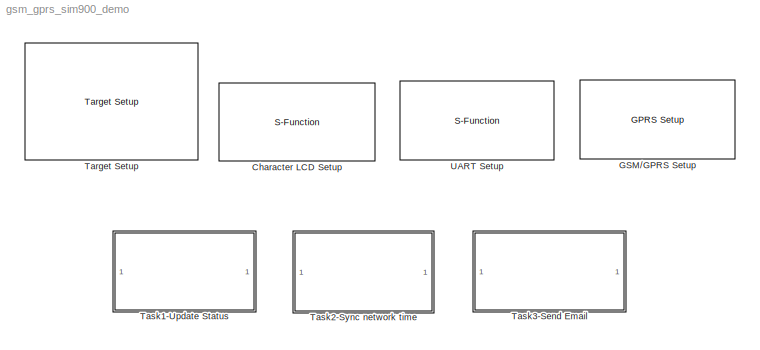
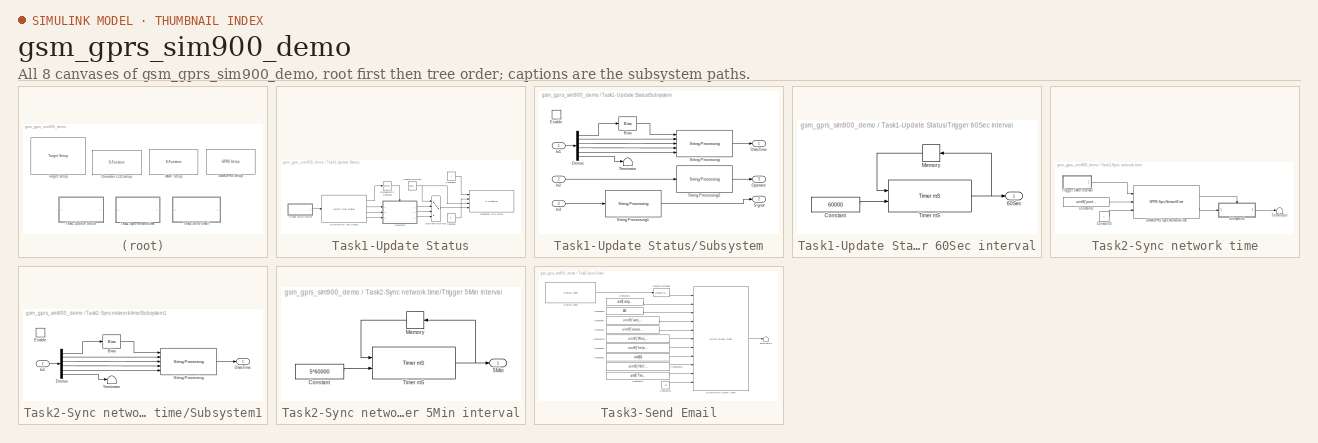
[diagram: thumbnail index - all 8 canvases of the model, root first then tree order]
MODEL gsm_gprs_sim900_demo
KIND model
CONFIG PreLoadFcn = waijung.modelPreload; % Required for working with Waijung Blockset. Do not remove.
BLOCK [S-Function] Character LCD Setup
  EnableBusSupport = off
  FunctionName = amg_clcd
  MaskCallbackString = amg_clcd_callback('configuration');||||||||||||||||amg_clcd_callback('usestringbuffer');||amg_clcd_callback('varname');|||amg_clcd_callback('confstr');|amg_clcd_callback('sampletime');|amg_clcd_callback('sampletimestr');|amg_clcd_callback('blockid');
  MaskDisplay = text(0.5, 0.5, 'Module: CLCD1 (Setup)\\nInterface: 4-bits\\nCntrl: E7/E8/E9\\nD[7:4]: E12/E13/E14/E15\\nTs (sec): 0.01','ver','middle','hor','center');
  MaskEnableString = on,on,on,on,off,on,on,on,on,on,on,on,on,on,on,on,on,on,off,off,off,on,on,on,on
  MaskHelp = web(fullfile(waijungdocroot,'amg_clcd_setup.htm'), '-browser')
  MaskIconFrame = on
  MaskIconOpaque = on
  MaskIconRotate = none
  MaskIconUnits = normalized
  MaskInitialization = amg_clcd_callback('init');
  MaskPortRotate = default
  MaskPromptString = Configuration:|Module:|LCD model:|Interface:|Number of lines (2 or 4):|Number of columns (16 or 20):|GPIO Output type:|GPIO control port:|GPIO control pin, RS:|GPIO control pin, RW:|GPIO control pin, EN:|GPIO data D[7:4] port|GPIO data pin, D4:|GPIO data pin, D5:|GPIO data pin, D6:|GPIO data pin, D7:|Use string buffer|String buffer|Variable name|Input type array|Output type array|Configuration str...<+66ch>
  MaskSelfModifiable = on
  MaskStyleString = popup(Setup|Transaction),popup(1|2|3|4),popup(amg CLCD Std),popup(4-bits),edit,edit,popup(Push-pull|Open-drain),popup(A|B|C|D|E|F|G|H|I),popup(0|1|2|3|4|5|6|7|8|9|10|11|12|13|14|15),popup(0|1|2|3|4|5|6|7|8|9|10|11|12|13|14|15),popup(0|1|2|3|4|5|6|7|8|9|10|11|12|13|14|15),popup(A|B|C|D|E|F|G|H|I),popup(0|1|2|3|4|5|6|7|8|9|10|11|12|13|14|15),popup(0|1|2|3|4|5|6|7|8|9|10|11|12|13|14|15),popup(0|1|2|3...<+135ch>
  MaskTabNameString = ,,,,,,,,,,,,,,,,,,,,,,,,
  MaskToolTipString = on,on,on,on,on,on,on,on,on,on,on,on,on,on,on,on,on,on,on,on,on,on,on,on,on
  MaskTunableValueString = off,off,off,off,off,off,off,off,off,off,off,off,off,off,off,off,off,off,off,off,off,off,off,off,off
  MaskType = amg_clcd
  MaskValueString = Setup|1|amg CLCD Std|4-bits|4|16|Push-pull|E|7|8|9|E|12|13|14|15|off|<empty>||[0]|[0]|[\"4\",\"4\",\"16\",\"PP\",\"E\",\"7\",\"9\",\"8\",\"\",\"E\",\"\",\"\",\"\",\"\",\"12\",\"13\",\"14\",\"15\",\"0\",\"\",\"0\",\"0\",\"0\",\"0\",\"1\",\"0\",\"0\",\"0\",\"0\",\"stm32f4\"]|-1|0.01|CharacterLCDSetup
  MaskVarAliasString = ,,,,,,,,,,,,,,,,,,,,,,,,
  MaskVariables = configuration=&1;module=&2;model=&3;interface=&4;linecount=@5;columncount=@6;gpiotype=&7;controlport=&8;control_rs=&9;control_rw=&10;control_en=&11;dataport=&12;data0=&13;data1=&14;data2=&15;data3=&16;usestringbuffer=@17;stringbuffer=&18;varname=&19;inputtypearray=@20;outputtypearray=@21;confstr=&22;sampletime=@23;sampletimestr=&24;blockid=&25;
  MaskVisibilityString = off,on,off,on,off,on,on,on,on,on,on,on,on,on,on,on,off,off,off,off,off,off,off,off,off
  Parameters = module,configuration,inputtypearray,outputtypearray,confstr,sampletime,sampletimestr,blockid
  Ports = []
BLOCK [Reference] GSM//GPRS Setup  REF=waijung_atcmd_gsmgprs_lib/GSM//GPRS Setup
  Ports = []
  SourceBlock = waijung_atcmd_gsmgprs_lib/GSM//GPRS Setup
  SourceType = waijung_atcmd_gsmgprs
  apn = 'Internet'
  blockid = GSMGPRSSetup
  compat = 0
  conf = Setup
  connectiontype = GPRS
  inputportlabel = {}
  inputporttype = []
  inputportwidth = []
  optionstring = [\"1\",\"2\",\"GPRS\",\"Internet\",\"D\",\"1\",\"D\",\"0\",\"0\",\"\",\"''\",\"''\"]
  outputportlabel = {}
  outputporttype = []
  outputportwidth = []
  password = ''
  portpinstr = 0
  pwrkey_pin = 1
  pwrkey_port = D
  reset_pin = 0
  reset_port = D
  sampletime = inf
  stringparam1 = ''
  stringparam2 = ''
  stringparam3 = ''
  stringparam4 = ''
  uartmodule = 2
  user = ''
BLOCK [Reference] Target Setup  REF=stm32f4_device_config_lib/Target Setup
  Ports = []
  Priority = 100
  SourceBlock = stm32f4_device_config_lib/Target Setup
  SourceType = stm32f4_target_setup
  assemblercontrolstr = $(patsubst %, -I%, .) -mcpu=cortex-m4 -mthumb -mthumb-interwork -mfloat-abi=hard -mfpu=fpv4-sp-d16 -ffast-math -Wall -Wextra -Ofast -Wa,-amhls=$(<:.s=.lst) -D__STACK_SIZE=$(STACK_SIZE) -D__HEAP_SIZE=$(HEAP_SIZE)
  blockid = TargetSetup
  clockconfig = HSEOSC-8MHz
  compiler = GNU ARM
  compilercontrolstr = $(patsubst %, -I%, .) -mcpu=cortex-m4 -mthumb -mthumb-interwork -mfloat-abi=hard -mfpu=fpv4-sp-d16 -ffast-math -Wall -Wextra -Ofast
  editctrlstr = on
  enableautocompiledownload = on
  execprofile = None
  flashlength = 1024k
  flashorigin = 0x8000000
  fullchiperase = off
  hclk = 168000000
  heapsize = 0x2000
  hseval = 8000000
  lastprofileruart = 3
  linkercontrolstr = -T$(LD_SCRIPT) -g -Wl,-Map=$(MAP),--cref,--no-warn-mismatch -mcpu=cortex-m4 -mthumb -mthumb-interwork -mfloat-abi=hard -mfpu=fpv4-sp-d16 -specs=nosys.specs
  manualsetsampletime = on
  mcu = STM32F417IG (LQFP176)
  mcustr = STM32F417IG
  previous_compiler = GNU ARM
  profilerbaud = 500000
  profilerinitstr = 0.01,168000000,1680000,500000,0
  profilertxpin = D8
  profileruart = 3
  programmerinterface = ST-Link
  ramlength = 128k
  ramorigin = 0x20000000
  runafterdownload = on
  sampletime = 0.01
  showmemoryconfiguration = on
  stacksize = 0x2000
  system_stm32f4xx_c_path = <path>
  systickreloadvalue = 1680000
  useextram = off
BLOCK [SubSystem] Task1-Update Status
  FunctionWithSeparateData = off
  MaskHideContents = off
  MinAlgLoopOccurrences = off
  Opaque = off
  Ports = []
  PropExecContextOutsideSubsystem = off
  RTWSystemCode = Auto
  RequestExecContextInheritance = off
BLOCK [S-Function] Task1-Update Status/Character LCD Write
  EnableBusSupport = off
  FunctionName = amg_clcd
  MaskCallbackString = amg_clcd_callback('configuration');||||||||||||||||amg_clcd_callback('usestringbuffer');||amg_clcd_callback('varname');|||amg_clcd_callback('confstr');|amg_clcd_callback('sampletime');|amg_clcd_callback('sampletimestr');|amg_clcd_callback('blockid');
  MaskDescription = Note for cmd:\n1 - Clear specified LCD line display before write data to LCD.\nOtherwise (e.g. 0) - Write data without clearing LCD Line.\n\nPosition:\nx = 0, First Character (from left to right)\ny = 0, Top Line
  MaskDisplay = text(0.5, 0.5, 'Module: CLCD1 (Write)\\nTs (sec): 0.01','ver','middle','hor','center');port_label('input', 1,'cmd');port_label('input', 2,'xpos');port_label('input', 3,'ypos');port_label('input', 4,'str');
  MaskEnableString = on,on,on,on,off,on,on,on,on,on,on,on,on,on,on,on,on,on,off,off,off,on,on,on,on
  MaskHelp = web(fullfile(waijungdocroot,'amg_clcd_write.htm'), '-browser')
  MaskIconFrame = on
  MaskIconOpaque = on
  MaskIconRotate = none
  MaskIconUnits = normalized
  MaskInitialization = amg_clcd_callback('init');
  MaskPortRotate = default
  MaskPromptString = Configuration:|Module:|LCD model:|Interface:|Number of lines:|Number of columns:|GPIO Output type:|GPIO control port:|GPIO control pin, RS:|GPIO control pin, RW:|GPIO control pin, EN:|GPIO data D[7:4] port|GPIO data pin, D4:|GPIO data pin, D5:|GPIO data pin, D6:|GPIO data pin, D7:|Use string buffer|String buffer|Variable name|Input type array|Output type array|Configuration string|Sample time (sec...<+46ch>
  MaskSelfModifiable = on
  MaskStyleString = popup(Setup|Transaction),popup(1|2|3|4),popup(amg CLCD Std),popup(4-bits),edit,edit,popup(Push-pull|Open-drain),popup(A|B|C|D|E|F|G|H|I),popup(0|1|2|3|4|5|6|7|8|9|10|11|12|13|14|15),popup(0|1|2|3|4|5|6|7|8|9|10|11|12|13|14|15),popup(0|1|2|3|4|5|6|7|8|9|10|11|12|13|14|15),popup(A|B|C|D|E|F|G|H|I),popup(0|1|2|3|4|5|6|7|8|9|10|11|12|13|14|15),popup(0|1|2|3|4|5|6|7|8|9|10|11|12|13|14|15),popup(0|1|2|3...<+135ch>
  MaskTabNameString = ,,,,,,,,,,,,,,,,,,,,,,,,
  MaskToolTipString = on,on,on,on,on,on,on,on,on,on,on,on,on,on,on,on,on,on,on,on,on,on,on,on,on
  MaskTunableValueString = off,off,off,off,off,off,off,off,off,off,off,off,off,off,off,off,off,off,off,off,off,off,off,off,off
  MaskType = amg_clcd
  MaskValueString = Transaction|1|amg CLCD Std|4-bits|4|20|Push-pull|E|15|13|11|A|7|5|3|1|off|<empty>||[4 -1 -1 -1 -1]|[0]|[\"4\",\"4\",\"20\",\"PP\",\"E\",\"15\",\"11\",\"13\",\"\",\"A\",\"\",\"\",\"\",\"\",\"7\",\"5\",\"3\",\"1\",\"0\",\"\",\"1\",\"0\",\"0\",\"0\",\"1\",\"0\",\"0\",\"0\",\"0\",\"stm32f4\"]|-1|0.01|Task1UpdateStatusCharacterLCDWrite
  MaskVarAliasString = ,,,,,,,,,,,,,,,,,,,,,,,,
  MaskVariables = configuration=&1;module=&2;model=&3;interface=&4;linecount=@5;columncount=@6;gpiotype=&7;controlport=&8;control_rs=&9;control_rw=&10;control_en=&11;dataport=&12;data0=&13;data1=&14;data2=&15;data3=&16;usestringbuffer=@17;stringbuffer=&18;varname=&19;inputtypearray=@20;outputtypearray=@21;confstr=&22;sampletime=@23;sampletimestr=&24;blockid=&25;
  MaskVisibilityString = off,on,off,off,off,off,off,off,off,off,off,off,off,off,off,off,on,off,off,off,off,off,on,off,off
  Parameters = module,configuration,inputtypearray,outputtypearray,confstr,sampletime,sampletimestr,blockid
  Ports = [4]
BLOCK [Reference] Task1-Update Status/Compare\nTo Constant  REF=simulink/Logic and Bit\nOperations/Compare\nTo Constant
  FunctionWithSeparateData = off
  LogicOutDataTypeMode = uint8
  Ports = [1, 1]
  RTWMemSecDataConstants = Inherit from model
  RTWMemSecDataInternal = Inherit from model
  RTWMemSecDataParameters = Inherit from model
  RTWMemSecFuncExecute = Inherit from model
  RTWMemSecFuncInitTerm = Inherit from model
  ShowPortLabels = FromPortIcon
  SourceBlock = simulink/Logic and Bit\nOperations/Compare\nTo Constant
  SourceType = Compare To Constant
  SystemSampleTime = -1
  ZeroCross = off
  const = 3
  relop = ==
BLOCK [Constant] Task1-Update Status/Constant
  OutDataType = fixdt(1, 16)
  OutDataTypeMode = uint8
  OutDataTypeStr = uint8
  OutScaling = 2^0
  Value = 0
BLOCK [Constant] Task1-Update Status/Constant1
  OutDataType = fixdt(1, 16)
  OutDataTypeMode = uint8
  OutDataTypeStr = uint8
  OutScaling = 2^0
BLOCK [Reference] Task1-Update Status/Counter\nLimited  REF=simulink/Sources/Counter\nLimited
  FunctionWithSeparateData = off
  Ports = [0, 1]
  RTWMemSecDataConstants = Inherit from model
  RTWMemSecDataInternal = Inherit from model
  RTWMemSecDataParameters = Inherit from model
  RTWMemSecFuncExecute = Inherit from model
  RTWMemSecFuncInitTerm = Inherit from model
  ShowPortLabels = FromPortIcon
  SourceBlock = simulink/Sources/Counter\nLimited
  SourceType = Counter Limited
  SystemSampleTime = -1
  tsamp = -1
  uplimit = 2
BLOCK [Reference] Task1-Update Status/GSM//GPRS Get Status  REF=waijung_atcmd_gsmgprs_lib/GSM//GPRS Get Status
  Ports = [1, 4]
  SourceBlock = waijung_atcmd_gsmgprs_lib/GSM//GPRS Get Status
  SourceType = waijung_atcmd_gsmgprs
  blockid = Task1UpdateStatusGSMGPRSGetStatus
  compat = 0
  conf = GetStatus
  inputportlabel = {'Trig'}
  inputporttype = [3]
  inputportwidth = [1]
  optionstring = [\"1\",\"2\",\"GPRS\",\"Internet\",\"D\",\"1\",\"D\",\"0\",\"0\",\"\",\"\",\"\"]
  outputportlabel = {'Status','Date/Time','Operator','Signal Strength'}
  outputporttype = [3 7 3 7]
  outputportwidth = [1 6 32 1]
  portpinstr = 0
  sampletime = inf
  stringparam1 = ''
  stringparam2 = ''
BLOCK [MultiPortSwitch] Task1-Update Status/Multiport\nSwitch
  InputSameDT = off
  OutDataType = fixdt(1, 16)
  OutScaling = 2^0
  Ports = [4, 1]
  SaturateOnIntegerOverflow = off
  zeroidx = on
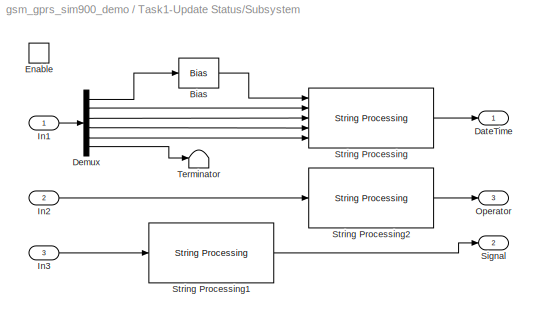
BLOCK [SubSystem] Task1-Update Status/Subsystem
  FunctionWithSeparateData = off
  MaskHideContents = off
  MinAlgLoopOccurrences = off
  Opaque = off
  Ports = [3, 3, 1]
  PropExecContextOutsideSubsystem = off
  RTWSystemCode = Auto
  RequestExecContextInheritance = off
BLOCK [Bias] Task1-Update Status/Subsystem/Bias
  Bias = 2000
  SaturateOnIntegerOverflow = off
BLOCK [Outport] Task1-Update Status/Subsystem/DateTime
  IconDisplay = Port number
  InitialOutput = uint8('Search network..                ')
BLOCK [Demux] Task1-Update Status/Subsystem/Demux
  DisplayOption = bar
  Outputs = 6
  Ports = [1, 6]
BLOCK [EnablePort] Task1-Update Status/Subsystem/Enable
  Ports = []
BLOCK [Inport] Task1-Update Status/Subsystem/In1
  IconDisplay = Port number
BLOCK [Inport] Task1-Update Status/Subsystem/In2
  IconDisplay = Port number
  Port = 2
BLOCK [Inport] Task1-Update Status/Subsystem/In3
  IconDisplay = Port number
  Port = 3
BLOCK [Outport] Task1-Update Status/Subsystem/Operator
  IconDisplay = Port number
  InitialOutput = uint8('                                ')
  Port = 3
BLOCK [Outport] Task1-Update Status/Subsystem/Signal
  IconDisplay = Port number
  InitialOutput = uint8('                                ')
  Port = 2
BLOCK [Reference] Task1-Update Status/Subsystem/String Processing  REF=waijung_string_manipulate/String Processing
  Ports = [5, 1]
  SourceBlock = waijung_string_manipulate/String Processing
  SourceType = waijung_string_processing_callback
  begindelimiter = ''
  blockid = Task1UpdateStatusSubsystemStringProcessing
  buffersize = 32
  compat = 0
  conf = processing
  datatypestring = [\"uint32_t\",\"uint32_t\",\"uint32_t\",\"uint32_t\",\"uint32_t\"]
  enablestatus = off
  enddelimiter = ''
  inputportlabel = {'%u','%u','%u','%u','%u'}
  inputporttype = [-1 -1 -1 -1 -1]
  inputportwidth = [1 1 1 1 1]
  optionstring = []
  outputportlabel = {'Output'}
  outputporttype = [3]
  outputportwidth = [32]
  portpinstr = 0
  sampletime = inf
  stringformat = '%u/%u/%u %u:%u'
  stringfunction = sprintf
BLOCK [Reference] Task1-Update Status/Subsystem/String Processing1  REF=waijung_string_manipulate/String Processing
  Ports = [1, 1]
  SourceBlock = waijung_string_manipulate/String Processing
  SourceType = waijung_string_processing_callback
  begindelimiter = ''
  blockid = Task1UpdateStatusSubsystemStringProcessing1
  buffersize = 32
  compat = 0
  conf = processing
  datatypestring = [\"int32_t\"]
  enablestatus = off
  enddelimiter = ''
  inputportlabel = {'%d'}
  inputporttype = [-1]
  inputportwidth = [1]
  optionstring = []
  outputportlabel = {'Output'}
  outputporttype = [3]
  outputportwidth = [32]
  portpinstr = 0
  sampletime = inf
  stringformat = 'Signal: %d'
  stringfunction = sprintf
BLOCK [Reference] Task1-Update Status/Subsystem/String Processing2  REF=waijung_string_manipulate/String Processing
  Ports = [1, 1]
  SourceBlock = waijung_string_manipulate/String Processing
  SourceType = waijung_string_processing_callback
  begindelimiter = ''
  blockid = Task1UpdateStatusSubsystemStringProcessing2
  buffersize = 32
  compat = 0
  conf = processing
  datatypestring = [\"char *\"]
  enablestatus = off
  enddelimiter = ''
  inputportlabel = {'%s'}
  inputporttype = [3]
  inputportwidth = [-1]
  optionstring = []
  outputportlabel = {'Output'}
  outputporttype = [3]
  outputportwidth = [32]
  portpinstr = 0
  sampletime = inf
  stringformat = 'OP: %s'
  stringfunction = sprintf
BLOCK [Terminator] Task1-Update Status/Subsystem/Terminator
BLOCK [SubSystem] Task1-Update Status/Trigger 60Sec interval
  FunctionWithSeparateData = off
  MaskHideContents = off
  MinAlgLoopOccurrences = off
  Opaque = off
  Ports = [0, 1]
  PropExecContextOutsideSubsystem = off
  RTWSystemCode = Auto
  RequestExecContextInheritance = off
BLOCK [Outport] Task1-Update Status/Trigger 60Sec interval/60Sec
  IconDisplay = Port number
BLOCK [Constant] Task1-Update Status/Trigger 60Sec interval/Constant
  OutDataType = fixdt(1, 16)
  OutDataTypeMode = uint32
  OutDataTypeStr = uint32
  OutScaling = 2^0
  Value = 60000
BLOCK [Memory] Task1-Update Status/Trigger 60Sec interval/Memory
  InheritSampleTime = on
  LinearizeAsDelay = on
  LinearizeMemory = on
BLOCK [Reference] Task1-Update Status/Trigger 60Sec interval/Timer mS  REF=waijung_systimer_lib/Timer mS
  Ports = [2, 1]
  SourceBlock = waijung_systimer_lib/Timer mS
  SourceType = waijung_systimer
  blockid = Task1UpdateStatusTrigger60SecintervalTimermS
  compat = 0
  conf = timerms
  inputportlabel = {'Reset','mS'}
  inputporttype = [3 7]
  inputportwidth = []
  mode = Non-blocking
  optionstring = [\"Non-blocking\"]
  outputportlabel = {'Timeout'}
  outputporttype = [3]
  outputportwidth = []
  portpinstr = 0
  sampletime = inf
BLOCK [SubSystem] Task2-Sync network time
  FunctionWithSeparateData = off
  MaskHideContents = off
  MinAlgLoopOccurrences = off
  Opaque = off
  Ports = []
  PropExecContextOutsideSubsystem = off
  RTWSystemCode = Auto
  RequestExecContextInheritance = off
BLOCK [Constant] Task2-Sync network time/Constant2
  OutDataType = fixdt(1, 16)
  OutScaling = 2^0
  Value = uint8('pool.ntp.org')
BLOCK [Constant] Task2-Sync network time/Constant3
  OutDataType = fixdt(1, 16)
  OutDataTypeMode = int32
  OutDataTypeStr = int32
  OutScaling = 2^0
  Value = 7
BLOCK [Reference] Task2-Sync network time/GSM//GPRS Sync NetworkTime  REF=waijung_atcmd_gsmgprs_lib/GSM//GPRS Sync NetworkTime
  Ports = [3, 2]
  SourceBlock = waijung_atcmd_gsmgprs_lib/GSM//GPRS Sync NetworkTime
  SourceType = waijung_atcmd_gsmgprs
  blockid = Task2SyncnetworktimeGSMGPRSSyncNetworkTime
  compat = 0
  conf = SyncNetworkTime
  inputportlabel = {'Trig','NTP Server','Time zone'}
  inputporttype = [3 3 6]
  inputportwidth = [1 -1 1]
  optionstring = [\"1\",\"2\",\"GPRS\",\"Internet\",\"D\",\"1\",\"D\",\"0\",\"0\",\"\",\"\",\"\"]
  outputportlabel = {'Status','Date/Time'}
  outputporttype = [3 7]
  outputportwidth = [1 6]
  portpinstr = 0
  sampletime = inf
  stringparam1 = ''
  stringparam2 = ''
BLOCK [SubSystem] Task2-Sync network time/Subsystem1
  FunctionWithSeparateData = off
  MaskHideContents = off
  MinAlgLoopOccurrences = off
  Opaque = off
  Ports = [1, 1, 1]
  PropExecContextOutsideSubsystem = off
  RTWSystemCode = Auto
  RequestExecContextInheritance = off
BLOCK [Bias] Task2-Sync network time/Subsystem1/Bias
  Bias = 2000
  SaturateOnIntegerOverflow = off
BLOCK [Outport] Task2-Sync network time/Subsystem1/DateTime
  IconDisplay = Port number
BLOCK [Demux] Task2-Sync network time/Subsystem1/Demux
  DisplayOption = bar
  Outputs = 6
  Ports = [1, 6]
BLOCK [EnablePort] Task2-Sync network time/Subsystem1/Enable
  Ports = []
BLOCK [Inport] Task2-Sync network time/Subsystem1/In1
  IconDisplay = Port number
BLOCK [Reference] Task2-Sync network time/Subsystem1/String Processing  REF=waijung_string_manipulate/String Processing
  Ports = [5, 1]
  SourceBlock = waijung_string_manipulate/String Processing
  SourceType = waijung_string_processing_callback
  begindelimiter = ''
  blockid = Task2SyncnetworktimeSubsystem1StringProcessing
  buffersize = 32
  compat = 0
  conf = processing
  datatypestring = [\"uint32_t\",\"uint32_t\",\"uint32_t\",\"uint32_t\",\"uint32_t\"]
  enablestatus = off
  enddelimiter = ''
  inputportlabel = {'%u','%u','%u','%u','%u'}
  inputporttype = [-1 -1 -1 -1 -1]
  inputportwidth = [1 1 1 1 1]
  optionstring = []
  outputportlabel = {'Output'}
  outputporttype = [3]
  outputportwidth = [32]
  portpinstr = 0
  sampletime = inf
  stringformat = '%u/%u/%u %u:%u'
  stringfunction = sprintf
BLOCK [Terminator] Task2-Sync network time/Subsystem1/Terminator
BLOCK [Terminator] Task2-Sync network time/Terminator
BLOCK [SubSystem] Task2-Sync network time/Trigger 5Min interval
  FunctionWithSeparateData = off
  MaskHideContents = off
  MinAlgLoopOccurrences = off
  Opaque = off
  Ports = [0, 1]
  PropExecContextOutsideSubsystem = off
  RTWSystemCode = Auto
  RequestExecContextInheritance = off
BLOCK [Outport] Task2-Sync network time/Trigger 5Min interval/5Min
  IconDisplay = Port number
BLOCK [Constant] Task2-Sync network time/Trigger 5Min interval/Constant
  OutDataType = fixdt(1, 16)
  OutDataTypeMode = uint32
  OutDataTypeStr = uint32
  OutScaling = 2^0
  Value = 5*60000
BLOCK [Memory] Task2-Sync network time/Trigger 5Min interval/Memory
  InheritSampleTime = on
  LinearizeAsDelay = on
  LinearizeMemory = on
BLOCK [Reference] Task2-Sync network time/Trigger 5Min interval/Timer mS  REF=waijung_systimer_lib/Timer mS
  Ports = [2, 1]
  SourceBlock = waijung_systimer_lib/Timer mS
  SourceType = waijung_systimer
  blockid = Task2SyncnetworktimeTrigger5MinintervalTimermS
  compat = 0
  conf = timerms
  inputportlabel = {'Reset','mS'}
  inputporttype = [3 7]
  inputportwidth = []
  mode = Non-blocking
  optionstring = [\"Non-blocking\"]
  outputportlabel = {'Timeout'}
  outputporttype = [3]
  outputportwidth = []
  portpinstr = 0
  sampletime = inf
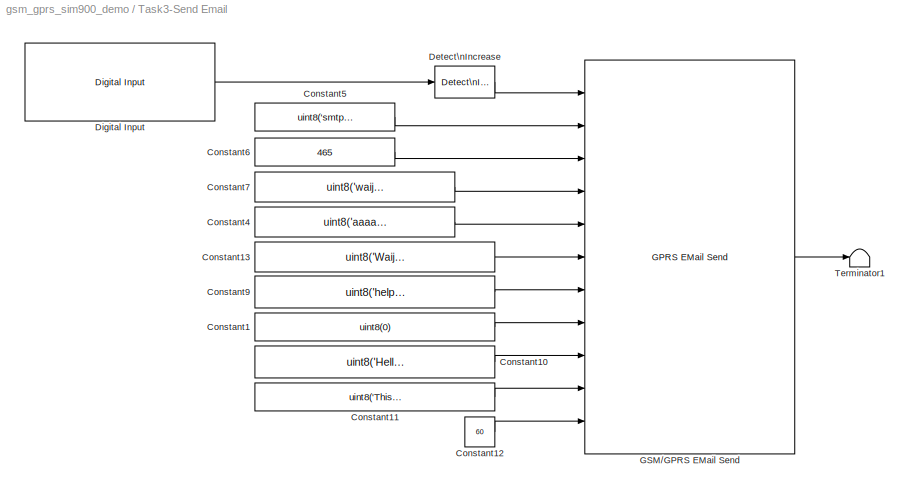
BLOCK [SubSystem] Task3-Send Email
  FunctionWithSeparateData = off
  MaskHideContents = off
  MinAlgLoopOccurrences = off
  Opaque = off
  Ports = []
  PropExecContextOutsideSubsystem = off
  RTWSystemCode = Auto
  RequestExecContextInheritance = off
BLOCK [Constant] Task3-Send Email/Constant1
  OutDataType = fixdt(1, 16)
  OutScaling = 2^0
  Value = uint8(0)
BLOCK [Constant] Task3-Send Email/Constant10
  OutDataType = fixdt(1, 16)
  OutScaling = 2^0
  Value = uint8('Hello...')
BLOCK [Constant] Task3-Send Email/Constant11
  OutDataType = fixdt(1, 16)
  OutScaling = 2^0
  Value = uint8('This is message from GSM')
BLOCK [Constant] Task3-Send Email/Constant12
  OutDataType = fixdt(1, 16)
  OutDataTypeMode = int32
  OutDataTypeStr = int32
  OutScaling = 2^0
  Value = 60
BLOCK [Constant] Task3-Send Email/Constant13
  OutDataType = fixdt(1, 16)
  OutScaling = 2^0
  Value = uint8('Waijung:<email>')
BLOCK [Constant] Task3-Send Email/Constant4
  OutDataType = fixdt(1, 16)
  OutScaling = 2^0
  Value = uint8('aaaaaaaa')
BLOCK [Constant] Task3-Send Email/Constant5
  OutDataType = fixdt(1, 16)
  OutScaling = 2^0
  Value = uint8('smtp.gmail.com')
BLOCK [Constant] Task3-Send Email/Constant6
  OutDataType = fixdt(1, 16)
  OutDataTypeMode = uint32
  OutDataTypeStr = uint32
  OutScaling = 2^0
  Value = 465
BLOCK [Constant] Task3-Send Email/Constant7
  OutDataType = fixdt(1, 16)
  OutScaling = 2^0
  Value = uint8('<email>')
BLOCK [Constant] Task3-Send Email/Constant9
  OutDataType = fixdt(1, 16)
  OutScaling = 2^0
  Value = uint8('<email>')
BLOCK [Reference] Task3-Send Email/Detect\nIncrease  REF=simulink/Logic and Bit\nOperations/Detect\nIncrease
  FunctionWithSeparateData = off
  Ports = [1, 1]
  RTWMemSecDataConstants = Inherit from model
  RTWMemSecDataInternal = Inherit from model
  RTWMemSecDataParameters = Inherit from model
  RTWMemSecFuncExecute = Inherit from model
  RTWMemSecFuncInitTerm = Inherit from model
  ShowPortLabels = FromPortIcon
  SourceBlock = simulink/Logic and Bit\nOperations/Detect\nIncrease
  SourceType = Detect Increase
  SystemSampleTime = -1
  vinit = 0.0
BLOCK [Reference] Task3-Send Email/Digital Input  REF=stm32f4_io_lib/Digital Input
  Ports = [0, 1]
  SourceBlock = stm32f4_io_lib/Digital Input
  SourceType = stm32f4_digital_input
  bitbandingstr = \n#define Task3SendEmailDigitalInput_B2 Peripheral_BB(GPIOB->IDR, 2)  /* Output pin */
  blockid = Task3SendEmailDigitalInput
  cinputportlabel = In1, In2
  coutputportlabel = Out1, Out2
  enablecustomportlabel = off
  glabalinit = off
  pinstr = GPIO_Pin_2
  port = B
  porttype = None
  porttypestr = NOPULL
  sampletime = 0.01
  sampletimestr = 0.01
  speed = 100
  use_pin0 = off
  use_pin1 = off
  use_pin10 = off
  use_pin11 = off
  use_pin12 = off
  use_pin13 = off
  use_pin14 = off
  use_pin15 = off
  use_pin2 = on
  use_pin3 = off
  use_pin4 = off
  use_pin5 = off
  use_pin6 = off
  use_pin7 = off
  use_pin8 = off
  use_pin9 = off
  usedpinarray = [0  0  1  0  0  0  0  0  0  0  0  0  0  0  0  0]
BLOCK [Reference] Task3-Send Email/GSM//GPRS EMail Send  REF=waijung_atcmd_gsmgprs_lib/GSM//GPRS EMail Send
  Ports = [11, 1]
  SourceBlock = waijung_atcmd_gsmgprs_lib/GSM//GPRS EMail Send
  SourceType = waijung_atcmd_gsmgprs
  blockid = Task3SendEmailGSMGPRSEMailSend
  compat = 0
  conf = SMTP
  inputportlabel = {'Trig','ServerName','ServerPort','***Login User','***Login Password','Sender','To Recipient','Cc Recipient','Subject','Message','Timeout(sec)'}
  inputporttype = [3 3 -1 3 3 3 3 3 3 3 -1]
  inputportwidth = [1 -1 1 -1 -1 -1 -1 -1 -1 -1 1]
  optionstring = [\"1\",\"2\",\"GPRS\",\"Internet\",\"D\",\"1\",\"D\",\"0\",\"1\",\"\",\"\",\"\"]
  outputportlabel = {'Status'}
  outputporttype = [3]
  outputportwidth = [1]
  portpinstr = 0
  sampletime = inf
  ssl = on
  stringparam1 = ''
  stringparam2 = ''
BLOCK [Terminator] Task3-Send Email/Terminator1
BLOCK [S-Function] UART Setup
  EnableBusSupport = off
  FunctionName = stm32f4_usart
  MaskCallbackString = stm32f4_usart_callback('configuration');|stm32f4_usart_callback('uartmodule');|stm32f4_usart_callback('baudrate');||||||stm32f4_usart_callback('flowcontrol');|||stm32f4_usart_callback('advanceoptions');|||stm32f4_usart_callback('transfer');|stm32f4_usart_callback('packetmode');|stm32f4_usart_callback('binheader');|stm32f4_usart_callback('binterminator');|stm32f4_usart_callback('porttype');|stm32f4...<+572ch>
  MaskDescription = Default STM32F4DISCOVERY + aMG F4 Connect 2 + aMG USB Converter N2 settings use\n\nUSART3, Tx D8, Rx D9 and USB Serial Converter A.
  MaskDisplay = text(0.5, 0.5, 'Module: USART2_Setup\\nBaud (Bps): 115200\\nDMA Buffer: 2048/2048\\nTx/Rx Pin: D5/D6','ver','middle','hor','center');
  MaskEnableString = on,on,on,on,on,on,on,on,on,off,off,on,on,on,on,on,on,on,on,on,on,on,on,on,on,on,on,on,on,on,on,on,on,on,on,on,on,on,on,off,off,on,on
  MaskHelp = web(fullfile(waijungdocroot,'stm32f4_usart_setup.htm'), '-browser')
  MaskIconFrame = on
  MaskIconOpaque = on
  MaskIconRotate = none
  MaskIconUnits = normalized
  MaskInitialization = stm32f4_usart_callback('init');
  MaskPortRotate = default
  MaskPromptString = Configuration|UART Module|Baud rate (bps)|Data bits|Parity|Stop bit|Tx Pin|Rx Pin|Hardware flow control|HW Flow control, CTS Pin|HW Flow control, RTS Pin|Advance options|Rx buffer size (bytes)|Tx buffer size (bytes)|Transfer|Packet mode|Binary header (example: '7E 7E')|Binary terminator (example: '03 03')|Number of data port, type DOUBLE|Number of data port, type SINGLE|Number of data port, type I...<+457ch>
  MaskSelfModifiable = on
  MaskStyleString = popup(Setup|Tx|Rx),popup(1|2|3|4|5|6),edit,popup(8),popup(No|Odd|Even),popup(0.5|1|1.5|2),popup(Not used|A2|D5),popup(Not used|A3|D6),popup(None|RTS|CTS|RTS/CTS),popup(Not used|A0|D3),popup(Not used|A1|D4),checkbox,popup(16|32|64|128|256|512|1024|2048),popup(16|32|64|128|256|512|1024|2048),popup(Blocking|Non-Blocking),popup(Ascii|Binary|String Buffer),edit,edit,edit,edit,edit,edit,edit,edit,edit,e...<+247ch>
  MaskTabNameString = ,,,,,,,,,,,,,,,,,,,,,,,,,,,,,,,,,,,,,,,,,,
  MaskToolTipString = on,on,on,on,on,on,on,on,on,on,on,on,on,on,on,on,on,on,on,on,on,on,on,on,on,on,on,on,on,on,on,on,on,on,on,on,on,on,on,on,on,on,on
  MaskTunableValueString = off,off,off,off,off,off,off,off,off,off,off,off,off,off,off,off,off,off,off,off,off,off,off,off,off,off,off,off,off,off,off,off,off,off,off,off,off,off,off,off,off,off,off
  MaskType = stm32f4_usart
  MaskValueString = Setup|2|115200|8|No|1|D5|D6|None|Not used|Not used|on|2048|2048|Blocking|Ascii|'7E 7E'|'03 03'|1|0|1|0|0|0|0|0|'%d,%f'|CRLF (0x0D 0x0A - \"<path>")|CR (0x0D - \"\\r\")|<empty>||[0]|[0]|[0]|[0]|0|''|[0]|-1|0.01|UARTSetup|[ \"dummy\", \"1\", \"D\", \"5\", \"1\", \"D\", \"6\", \"0\", \"*\", \"*\", \"0\", \"*\", \"*\", \"1\", \"4\", \"6\", \"1\", \"4\", \"5\", \"2048\", \"2048\", \"1\", \"2\", \"1152...<+51ch>
  MaskVarAliasString = ,,,,,,,,,,,,,,,,,,,,,,,,,,,,,,,,,,,,,,,,,,
  MaskVariables = configuration=&1;uartmodule=&2;baudrate=@3;databits=@4;parity=&5;stopbit=&6;remaptxpin=&7;remaprxpin=&8;flowcontrol=&9;remapctspin=&10;remaprtspin=&11;advanceoptions=@12;rxbuffersize=@13;txbuffersize=@14;transfer=&15;packetmode=&16;binheader=&17;binterminator=&18;porttype_double=@19;porttype_single=@20;porttype_int8=@21;porttype_uint8=@22;porttype_int16=@23;porttype_uint16=@24;porttype_int32=@25;p...<+306ch>
  MaskVisibilityString = off,on,on,on,on,on,on,on,on,on,on,on,on,on,off,off,off,off,off,off,off,off,off,off,off,off,off,off,off,off,off,off,off,off,off,off,off,off,off,off,off,off,off
  Parameters = configuration,uartmodule,transfer,baudrate,inputtype,outputtype,confstr,binheaderarray,binterminatorarray,asciiheader,asciiterminator,bindatalength,packetmode,varname,sampletime,sampletimestr,blockid
  Ports = []
  Priority = 1
LINE Task1-Update Status/Compare\nTo Constant:1 -> Task1-Update Status/Subsystem:enable
LINE Task1-Update Status/Constant1:1 -> Task1-Update Status/Character LCD Write:1
LINE Task1-Update Status/Constant:1 -> Task1-Update Status/Character LCD Write:2
NET Task1-Update Status/Counter\nLimited:1 -> Task1-Update Status/Character LCD Write:3, Task1-Update Status/Multiport\nSwitch:1
LINE Task1-Update Status/GSM//GPRS Get Status:1 -> Task1-Update Status/Compare\nTo Constant:1
LINE Task1-Update Status/GSM//GPRS Get Status:2 -> Task1-Update Status/Subsystem:1
LINE Task1-Update Status/GSM//GPRS Get Status:3 -> Task1-Update Status/Subsystem:2
LINE Task1-Update Status/GSM//GPRS Get Status:4 -> Task1-Update Status/Subsystem:3
LINE Task1-Update Status/Multiport\nSwitch:1 -> Task1-Update Status/Character LCD Write:4
LINE Task1-Update Status/Subsystem/Bias:1 -> Task1-Update Status/Subsystem/String Processing:1
LINE Task1-Update Status/Subsystem/Demux:1 -> Task1-Update Status/Subsystem/Bias:1
LINE Task1-Update Status/Subsystem/Demux:2 -> Task1-Update Status/Subsystem/String Processing:2
LINE Task1-Update Status/Subsystem/Demux:3 -> Task1-Update Status/Subsystem/String Processing:3
LINE Task1-Update Status/Subsystem/Demux:4 -> Task1-Update Status/Subsystem/String Processing:4
LINE Task1-Update Status/Subsystem/Demux:5 -> Task1-Update Status/Subsystem/String Processing:5
LINE Task1-Update Status/Subsystem/Demux:6 -> Task1-Update Status/Subsystem/Terminator:1
LINE Task1-Update Status/Subsystem/In1:1 -> Task1-Update Status/Subsystem/Demux:1
LINE Task1-Update Status/Subsystem/In2:1 -> Task1-Update Status/Subsystem/String Processing2:1
LINE Task1-Update Status/Subsystem/In3:1 -> Task1-Update Status/Subsystem/String Processing1:1
LINE Task1-Update Status/Subsystem/String Processing1:1 -> Task1-Update Status/Subsystem/Signal:1
LINE Task1-Update Status/Subsystem/String Processing2:1 -> Task1-Update Status/Subsystem/Operator:1
LINE Task1-Update Status/Subsystem/String Processing:1 -> Task1-Update Status/Subsystem/DateTime:1
LINE Task1-Update Status/Subsystem:1 -> Task1-Update Status/Multiport\nSwitch:2
LINE Task1-Update Status/Subsystem:2 -> Task1-Update Status/Multiport\nSwitch:3
LINE Task1-Update Status/Subsystem:3 -> Task1-Update Status/Multiport\nSwitch:4
LINE Task1-Update Status/Trigger 60Sec interval/Constant:1 -> Task1-Update Status/Trigger 60Sec interval/Timer mS:2
LINE Task1-Update Status/Trigger 60Sec interval/Memory:1 -> Task1-Update Status/Trigger 60Sec interval/Timer mS:1
NET Task1-Update Status/Trigger 60Sec interval/Timer mS:1 -> Task1-Update Status/Trigger 60Sec interval/60Sec:1, Task1-Update Status/Trigger 60Sec interval/Memory:1
LINE Task1-Update Status/Trigger 60Sec interval:1 -> Task1-Update Status/GSM//GPRS Get Status:1
LINE Task2-Sync network time/Constant2:1 -> Task2-Sync network time/GSM//GPRS Sync NetworkTime:2
LINE Task2-Sync network time/Constant3:1 -> Task2-Sync network time/GSM//GPRS Sync NetworkTime:3
LINE Task2-Sync network time/GSM//GPRS Sync NetworkTime:1 -> Task2-Sync network time/Subsystem1:enable
LINE Task2-Sync network time/GSM//GPRS Sync NetworkTime:2 -> Task2-Sync network time/Subsystem1:1
LINE Task2-Sync network time/Subsystem1/Bias:1 -> Task2-Sync network time/Subsystem1/String Processing:1
LINE Task2-Sync network time/Subsystem1/Demux:1 -> Task2-Sync network time/Subsystem1/Bias:1
LINE Task2-Sync network time/Subsystem1/Demux:2 -> Task2-Sync network time/Subsystem1/String Processing:2
LINE Task2-Sync network time/Subsystem1/Demux:3 -> Task2-Sync network time/Subsystem1/String Processing:3
LINE Task2-Sync network time/Subsystem1/Demux:4 -> Task2-Sync network time/Subsystem1/String Processing:4
LINE Task2-Sync network time/Subsystem1/Demux:5 -> Task2-Sync network time/Subsystem1/String Processing:5
LINE Task2-Sync network time/Subsystem1/Demux:6 -> Task2-Sync network time/Subsystem1/Terminator:1
LINE Task2-Sync network time/Subsystem1/In1:1 -> Task2-Sync network time/Subsystem1/Demux:1
LINE Task2-Sync network time/Subsystem1/String Processing:1 -> Task2-Sync network time/Subsystem1/DateTime:1
LINE Task2-Sync network time/Subsystem1:1 -> Task2-Sync network time/Terminator:1
LINE Task2-Sync network time/Trigger 5Min interval/Constant:1 -> Task2-Sync network time/Trigger 5Min interval/Timer mS:2
LINE Task2-Sync network time/Trigger 5Min interval/Memory:1 -> Task2-Sync network time/Trigger 5Min interval/Timer mS:1
NET Task2-Sync network time/Trigger 5Min interval/Timer mS:1 -> Task2-Sync network time/Trigger 5Min interval/5Min:1, Task2-Sync network time/Trigger 5Min interval/Memory:1
LINE Task2-Sync network time/Trigger 5Min interval:1 -> Task2-Sync network time/GSM//GPRS Sync NetworkTime:1
LINE Task3-Send Email/Constant10:1 -> Task3-Send Email/GSM//GPRS EMail Send:9
LINE Task3-Send Email/Constant11:1 -> Task3-Send Email/GSM//GPRS EMail Send:10
LINE Task3-Send Email/Constant12:1 -> Task3-Send Email/GSM//GPRS EMail Send:11
LINE Task3-Send Email/Constant13:1 -> Task3-Send Email/GSM//GPRS EMail Send:6
LINE Task3-Send Email/Constant1:1 -> Task3-Send Email/GSM//GPRS EMail Send:8
LINE Task3-Send Email/Constant4:1 -> Task3-Send Email/GSM//GPRS EMail Send:5
LINE Task3-Send Email/Constant5:1 -> Task3-Send Email/GSM//GPRS EMail Send:2
LINE Task3-Send Email/Constant6:1 -> Task3-Send Email/GSM//GPRS EMail Send:3
LINE Task3-Send Email/Constant7:1 -> Task3-Send Email/GSM//GPRS EMail Send:4
LINE Task3-Send Email/Constant9:1 -> Task3-Send Email/GSM//GPRS EMail Send:7
LINE Task3-Send Email/Detect\nIncrease:1 -> Task3-Send Email/GSM//GPRS EMail Send:1
LINE Task3-Send Email/Digital Input:1 -> Task3-Send Email/Detect\nIncrease:1
LINE Task3-Send Email/GSM//GPRS EMail Send:1 -> Task3-Send Email/Terminator1:1
note: NET lines group one-source signal fan-out (src -> all destinations, sorted); 1:1 wires keep LINE
note: 2 file-system paths scrubbed to <path> (not preserved elsewhere — flat text is the only slx artifact)
